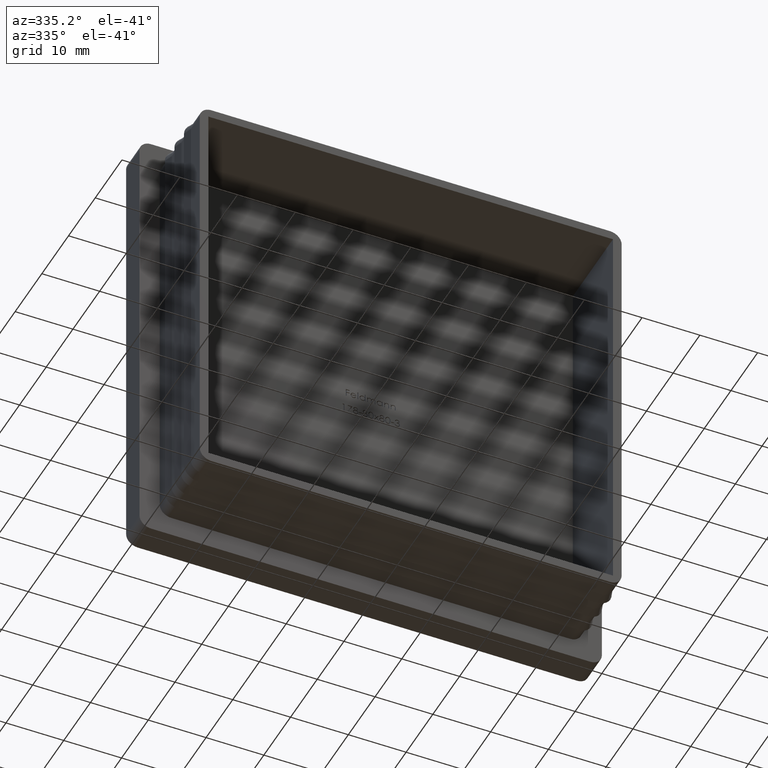
[diagram: clean part render]
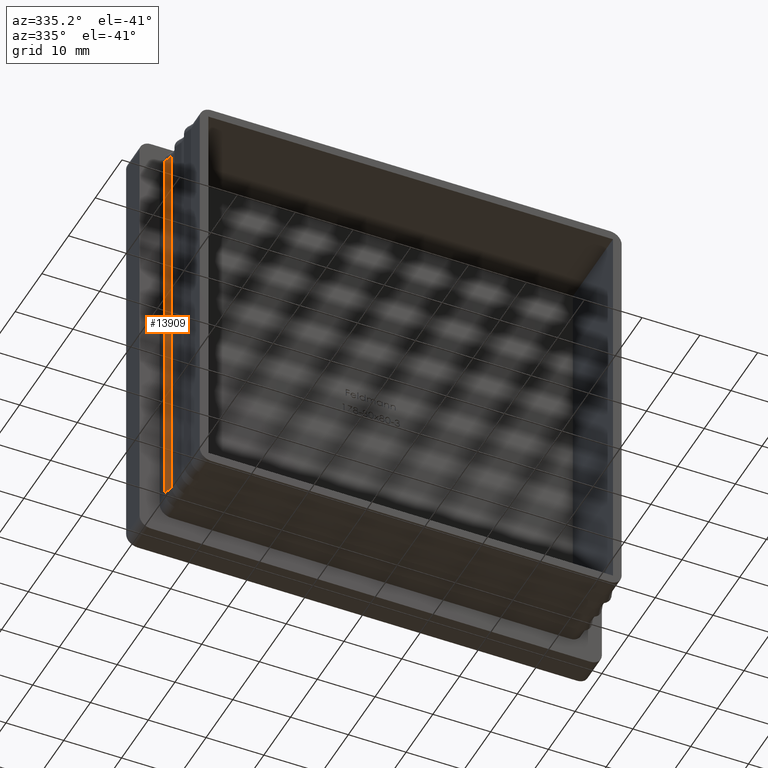
[diagram: same view with one face highlighted and labeled with its STEP entity id]
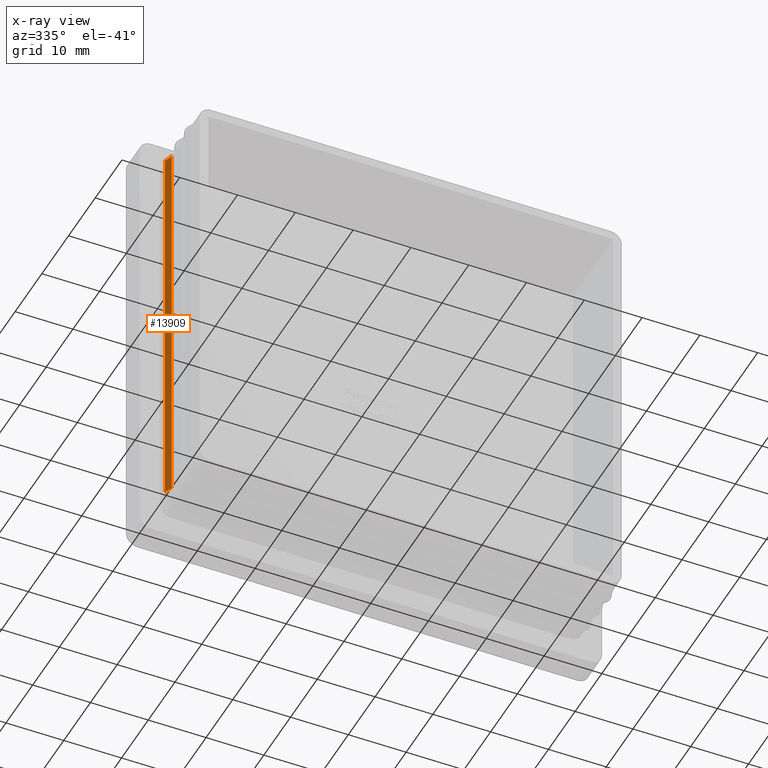
[diagram: x-ray of the same camera — body ghosted, the highlighted face saturated]
A machine part, auxiliary view. The second image highlights one B-rep face of the part: STEP entity #13909.
The next image is the same camera in x-ray: the body ghosted, the highlighted face saturated — about 0% of this face is hidden behind the body in this view.
In plain terms, the highlighted planar face has unit normal (0.9487, 0.3162, 0).
Its self-contained STEP definition (entity closure, byte-faithful):
#1211 = CARTESIAN_POINT ( 'NONE',  ( -36.50000000000000000, -4.500000000000003600, -34.50000000000001400 ) ) ;
#2542 = DIRECTION ( 'NONE',  ( 0.3162277660168382700, -0.9486832980505136600, -1.936336607270196100E-017 ) ) ;
#4191 = CARTESIAN_POINT ( 'NONE',  ( -37.00000000000000000, -3.000000000000004900, 34.49999999999997200 ) ) ;
#4337 = FACE_OUTER_BOUND ( 'NONE', #15231, .T. ) ;
#5089 = LINE ( 'NONE', #9588, #8185 ) ;
#5092 = ORIENTED_EDGE ( 'NONE', *, *, #6879, .F. ) ;
#5479 = VECTOR ( 'NONE', #6856, 1000.000000000000100 ) ;
#5523 = CARTESIAN_POINT ( 'NONE',  ( -36.50000000000000000, -4.500000000000003600, 34.49999999999997200 ) ) ;
#5893 = ORIENTED_EDGE ( 'NONE', *, *, #12616, .F. ) ;
#6148 = DIRECTION ( 'NONE',  ( 0.0000000000000000000, 0.0000000000000000000, -1.000000000000000000 ) ) ;
#6384 = VERTEX_POINT ( 'NONE', #6565 ) ;
#6565 = CARTESIAN_POINT ( 'NONE',  ( -36.50000000000000000, -4.500000000000003600, -34.50000000000001400 ) ) ;
#6856 = DIRECTION ( 'NONE',  ( 0.3162277660168382700, -0.9486832980505136600, -1.936336607270196100E-017 ) ) ;
#6879 = EDGE_CURVE ( 'NONE', #8249, #6384, #16779, .T. ) ;
#7192 = VERTEX_POINT ( 'NONE', #11266 ) ;
#7284 = CARTESIAN_POINT ( 'NONE',  ( -36.50000000000000000, -4.500000000000003600, 34.49999999999997200 ) ) ;
#7632 = VERTEX_POINT ( 'NONE', #4191 ) ;
#8185 = VECTOR ( 'NONE', #8253, 1000.000000000000000 ) ;
#8249 = VERTEX_POINT ( 'NONE', #8996 ) ;
#8253 = DIRECTION ( 'NONE',  ( 0.0000000000000000000, 0.0000000000000000000, -1.000000000000000000 ) ) ;
#8604 = DIRECTION ( 'NONE',  ( -0.3162277660168382700, 0.9486832980505136600, 0.0000000000000000000 ) ) ;
#8674 = ORIENTED_EDGE ( 'NONE', *, *, #15451, .T. ) ;
#8883 = VECTOR ( 'NONE', #2542, 1000.000000000000100 ) ;
#8996 = CARTESIAN_POINT ( 'NONE',  ( -36.50000000000000000, -4.500000000000003600, 34.49999999999997200 ) ) ;
#9300 = LINE ( 'NONE', #1211, #8883 ) ;
#9486 = ORIENTED_EDGE ( 'NONE', *, *, #11293, .T. ) ;
#9588 = CARTESIAN_POINT ( 'NONE',  ( -37.00000000000000000, -3.000000000000004900, 34.49999999999997200 ) ) ;
#10260 = VECTOR ( 'NONE', #6148, 1000.000000000000000 ) ;
#11266 = CARTESIAN_POINT ( 'NONE',  ( -37.00000000000000000, -3.000000000000004900, -34.50000000000001400 ) ) ;
#11293 = EDGE_CURVE ( 'NONE', #7192, #6384, #9300, .T. ) ;
#12465 = PLANE ( 'NONE',  #12818 ) ;
#12616 = EDGE_CURVE ( 'NONE', #7632, #8249, #16341, .T. ) ;
#12818 = AXIS2_PLACEMENT_3D ( 'NONE', #7284, #16428, #8604 ) ;
#13909 = ADVANCED_FACE ( 'NONE', ( #4337 ), #12465, .F. ) ;
#15231 = EDGE_LOOP ( 'NONE', ( #5893, #8674, #9486, #5092 ) ) ;
#15451 = EDGE_CURVE ( 'NONE', #7632, #7192, #5089, .T. ) ;
#16341 = LINE ( 'NONE', #5523, #5479 ) ;
#16428 = DIRECTION ( 'NONE',  ( 0.9486832980505137700, 0.3162277660168383300, 0.0000000000000000000 ) ) ;
#16538 = CARTESIAN_POINT ( 'NONE',  ( -36.50000000000000000, -4.500000000000003600, 34.49999999999997200 ) ) ;
#16779 = LINE ( 'NONE', #16538, #10260 ) ;